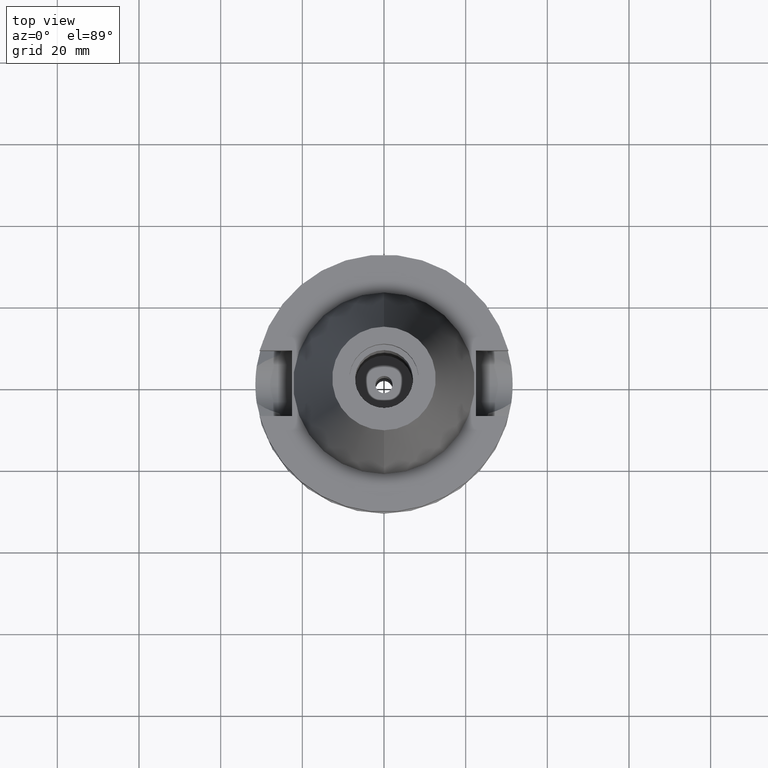
[diagram: clean part render]
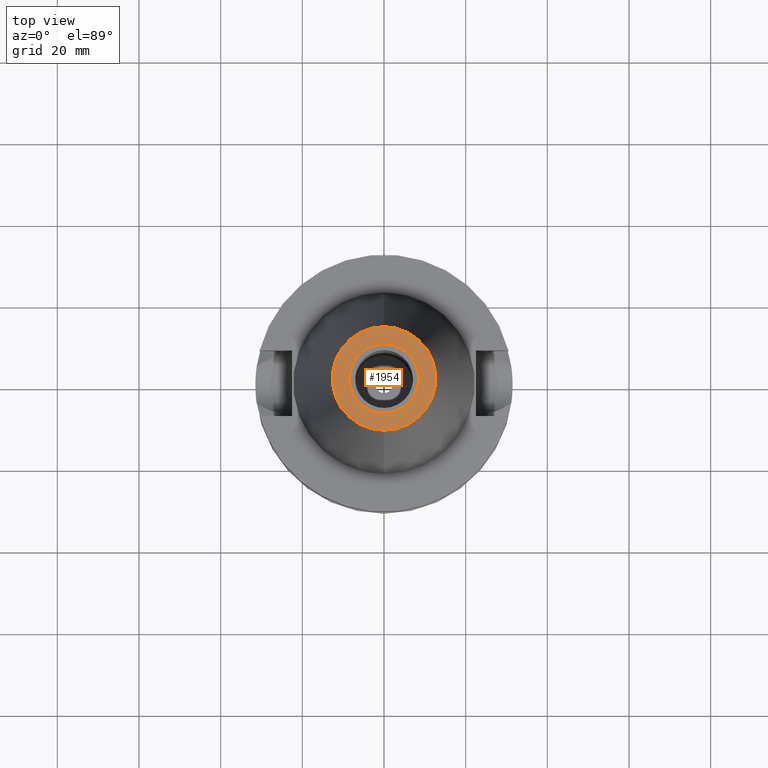
[diagram: same view with one face highlighted and labeled with its STEP entity id]
A machine part, top view. The second image highlights one B-rep face of the part: STEP entity #1954.
In plain terms, the highlighted planar face has unit normal (0, 0, -1).
Its self-contained STEP definition (entity closure, byte-faithful):
#73 = DIRECTION ( 'NONE',  ( 0.0000000000000000000, 0.0000000000000000000, -1.000000000000000000 ) ) ;
#98 = AXIS2_PLACEMENT_3D ( 'NONE', #575, #1243, #2138 ) ;
#174 = AXIS2_PLACEMENT_3D ( 'NONE', #1947, #771, #2571 ) ;
#242 = CIRCLE ( 'NONE', #438, 8.500000000000000000 ) ;
#438 = AXIS2_PLACEMENT_3D ( 'NONE', #867, #1786, #2830 ) ;
#536 = VERTEX_POINT ( 'NONE', #1991 ) ;
#537 = FACE_OUTER_BOUND ( 'NONE', #1972, .T. ) ;
#554 = EDGE_CURVE ( 'NONE', #1080, #536, #242, .T. ) ;
#564 = ORIENTED_EDGE ( 'NONE', *, *, #554, .F. ) ;
#575 = CARTESIAN_POINT ( 'NONE',  ( 0.0000000000000000000, 1.625106302469000024E-14, 65.40000000000000568 ) ) ;
#586 = EDGE_LOOP ( 'NONE', ( #1145, #564 ) ) ;
#684 = EDGE_CURVE ( 'NONE', #1426, #1485, #2315, .T. ) ;
#771 = DIRECTION ( 'NONE',  ( 0.0000000000000000000, 0.0000000000000000000, 1.000000000000000000 ) ) ;
#867 = CARTESIAN_POINT ( 'NONE',  ( 0.0000000000000000000, 2.118271568485000005E-14, 65.40000000000000568 ) ) ;
#921 = PLANE ( 'NONE',  #2544 ) ;
#980 = DIRECTION ( 'NONE',  ( 0.0000000000000000000, -1.000000000000000000, 0.0000000000000000000 ) ) ;
#1033 = ORIENTED_EDGE ( 'NONE', *, *, #684, .F. ) ;
#1074 = CIRCLE ( 'NONE', #174, 8.500000000000000000 ) ;
#1080 = VERTEX_POINT ( 'NONE', #2509 ) ;
#1112 = DIRECTION ( 'NONE',  ( 0.0000000000000000000, -1.000000000000000000, 0.0000000000000000000 ) ) ;
#1145 = ORIENTED_EDGE ( 'NONE', *, *, #2146, .F. ) ;
#1243 = DIRECTION ( 'NONE',  ( 0.0000000000000000000, 0.0000000000000000000, -1.000000000000000000 ) ) ;
#1426 = VERTEX_POINT ( 'NONE', #2849 ) ;
#1433 = FACE_BOUND ( 'NONE', #586, .T. ) ;
#1485 = VERTEX_POINT ( 'NONE', #2835 ) ;
#1786 = DIRECTION ( 'NONE',  ( 0.0000000000000000000, 0.0000000000000000000, 1.000000000000000000 ) ) ;
#1806 = EDGE_CURVE ( 'NONE', #1485, #1426, #2319, .T. ) ;
#1947 = CARTESIAN_POINT ( 'NONE',  ( 0.0000000000000000000, 2.118271568485000005E-14, 65.40000000000000568 ) ) ;
#1954 = ADVANCED_FACE ( 'NONE', ( #537, #1433 ), #921, .F. ) ;
#1972 = EDGE_LOOP ( 'NONE', ( #1033, #2354 ) ) ;
#1991 = CARTESIAN_POINT ( 'NONE',  ( 0.0000000000000000000, 8.500000000000000000, 65.40000000000000568 ) ) ;
#1997 = CARTESIAN_POINT ( 'NONE',  ( 0.0000000000000000000, 1.625106302469000024E-14, 65.40000000000000568 ) ) ;
#2053 = DIRECTION ( 'NONE',  ( 0.0000000000000000000, 0.0000000000000000000, -1.000000000000000000 ) ) ;
#2138 = DIRECTION ( 'NONE',  ( 0.0000000000000000000, 1.000000000000000000, 0.0000000000000000000 ) ) ;
#2146 = EDGE_CURVE ( 'NONE', #536, #1080, #1074, .T. ) ;
#2315 = CIRCLE ( 'NONE', #98, 12.68766899429999917 ) ;
#2319 = CIRCLE ( 'NONE', #2630, 12.68766899429999917 ) ;
#2346 = CARTESIAN_POINT ( 'NONE',  ( 0.0000000000000000000, 2.025565805790000122E-14, 65.40000000000000568 ) ) ;
#2354 = ORIENTED_EDGE ( 'NONE', *, *, #1806, .F. ) ;
#2509 = CARTESIAN_POINT ( 'NONE',  ( 0.0000000000000000000, -8.500000000000000000, 65.40000000000000568 ) ) ;
#2544 = AXIS2_PLACEMENT_3D ( 'NONE', #2346, #73, #980 ) ;
#2571 = DIRECTION ( 'NONE',  ( 0.0000000000000000000, 1.000000000000000000, 0.0000000000000000000 ) ) ;
#2630 = AXIS2_PLACEMENT_3D ( 'NONE', #1997, #2053, #1112 ) ;
#2830 = DIRECTION ( 'NONE',  ( 0.0000000000000000000, -1.000000000000000000, 0.0000000000000000000 ) ) ;
#2835 = CARTESIAN_POINT ( 'NONE',  ( 0.0000000000000000000, -12.68766899429999917, 65.40000000000000568 ) ) ;
#2849 = CARTESIAN_POINT ( 'NONE',  ( 0.0000000000000000000, 12.68766899429999917, 65.40000000000000568 ) ) ;